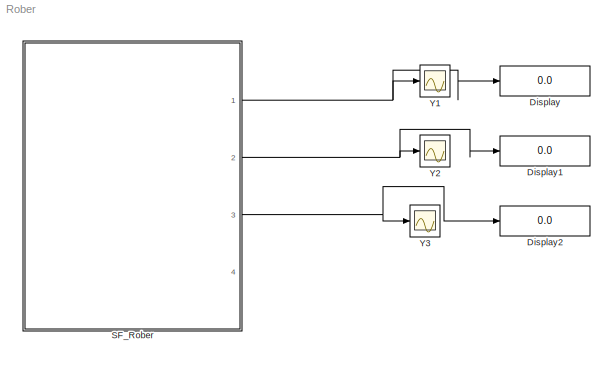
MODEL Rober
KIND model
BLOCK [Display] Display
  Decimation = 1
  Ports = [1]
  SID = 6
BLOCK [Display] Display1
  Decimation = 1
  Ports = [1]
  SID = 7
BLOCK [Display] Display2
  Decimation = 1
  Ports = [1]
  SID = 8
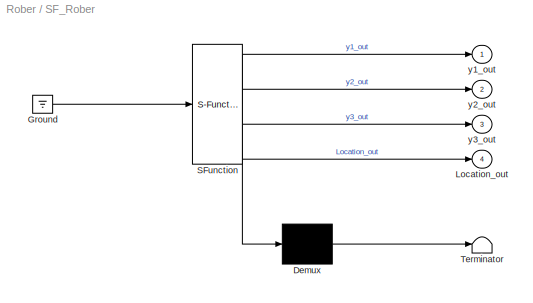
BLOCK [SubSystem] SF_Rober
  ErrorFcn = Stateflow.Translate.translate
  PermitHierarchicalResolution = ExplicitOnly
  Ports = [0, 4]
  RequestExecContextInheritance = off
  SFBlockType = Chart
  SID = 1
  TreatAsAtomicUnit = on
BLOCK [Demux] SF_Rober/ Demux 
  Outputs = 1
  Ports = [1, 1]
  SID = 1::70
BLOCK [Ground] SF_Rober/ Ground 
  SID = 1::72
BLOCK [S-Function] SF_Rober/ SFunction 
  EnableBusSupport = off
  FunctionName = sf_sfun
  PortCounts = [1 5]
  Ports = [1, 5]
  SFcnIsStateOwnerBlock = off
  SFunctionDeploymentMode = off
  SID = 1::69
  Tag = Stateflow S-Function 3
BLOCK [Terminator] SF_Rober/ Terminator 
  SID = 1::71
BLOCK [Outport] SF_Rober/Location_out
  IconDisplay = Port number
  Port = 4
  SID = 1::68
BLOCK [Outport] SF_Rober/y1_out
  IconDisplay = Port number
  SID = 1::65
BLOCK [Outport] SF_Rober/y2_out
  IconDisplay = Port number
  Port = 2
  SID = 1::66
BLOCK [Outport] SF_Rober/y3_out
  IconDisplay = Port number
  Port = 3
  SID = 1::67
BLOCK [Scope] Y1
  Floating = off
  NumInputPorts = 1
  Ports = [1]
  SID = 3
  ScopeSpecificationString = C++SS(StrPVP('Location','[587, 131, 911, 370]'),StrPVP('Open','off'),MxPVP('AxesTitles',54,'struct(''axes1'',''%<SignalLabel>'')'),MxPVP('ScopeGraphics',57,'struct(''FigureColor'',''[0.5 0.5 0.5]'',''AxesColor'',''[0 0 0]'',''AxesTickColor'',''[1 1 1]'',''LineColors'',''[1 1 0;1 0 1;0 1 1;1 0 0;0 1 0;0 0 1]'',''LineStyles'',''-|-|-|-|-|-'',''LineWidths'',''[0.5 0.5 0.5 0.5 0.5 0.5]'',''MarkerStyle...<+291ch>
BLOCK [Scope] Y2
  Floating = off
  NumInputPorts = 1
  Ports = [1]
  SID = 4
  ScopeSpecificationString = C++SS(StrPVP('Location','[188, 390, 512, 629]'),StrPVP('Open','off'),MxPVP('AxesTitles',54,'struct(''axes1'',''%<SignalLabel>'')'),MxPVP('ScopeGraphics',57,'struct(''FigureColor'',''[0.5 0.5 0.5]'',''AxesColor'',''[0 0 0]'',''AxesTickColor'',''[1 1 1]'',''LineColors'',''[1 1 0;1 0 1;0 1 1;1 0 0;0 1 0;0 0 1]'',''LineStyles'',''-|-|-|-|-|-'',''LineWidths'',''[0.5 0.5 0.5 0.5 0.5 0.5]'',''MarkerStyle...<+291ch>
BLOCK [Scope] Y3
  Floating = off
  NumInputPorts = 1
  Ports = [1]
  SID = 5
  ScopeSpecificationString = C++SS(StrPVP('Location','[188, 390, 512, 629]'),StrPVP('Open','off'),MxPVP('AxesTitles',54,'struct(''axes1'',''%<SignalLabel>'')'),MxPVP('ScopeGraphics',57,'struct(''FigureColor'',''[0.5 0.5 0.5]'',''AxesColor'',''[0 0 0]'',''AxesTickColor'',''[1 1 1]'',''LineColors'',''[1 1 0;1 0 1;0 1 1;1 0 0;0 1 0;0 0 1]'',''LineStyles'',''-|-|-|-|-|-'',''LineWidths'',''[0.5 0.5 0.5 0.5 0.5 0.5]'',''MarkerStyle...<+291ch>
LINE SF_Rober/ Demux :1 -> SF_Rober/ Terminator :1
LINE SF_Rober/ Ground :1 -> SF_Rober/ SFunction :1
LINE SF_Rober/ SFunction :1 -> SF_Rober/ Demux :1
LINE SF_Rober/ SFunction :2 -> SF_Rober/y1_out:1
LINE SF_Rober/ SFunction :3 -> SF_Rober/y2_out:1
LINE SF_Rober/ SFunction :4 -> SF_Rober/y3_out:1
LINE SF_Rober/ SFunction :5 -> SF_Rober/Location_out:1
NET SF_Rober:1 -> Display:1, Y1:1
NET SF_Rober:2 -> Display1:1, Y2:1
NET SF_Rober:3 -> Display2:1, Y3:1
note: NET lines group one-source signal fan-out (src -> all destinations, sorted); 1:1 wires keep LINE
CHART SF_Rober states=1 transitions=1
  STATE_LABEL 'Rober\\ndu:\\ny1_dot=(0-k1)*y1+k3*y2*y3;\\ny2_dot=k1*y1-k2*y2*y2-k3*y2*y3;\\ny3_dot=k2*y2^2;\\ny1_out=y1;\\ny2_out=y2;\\ny3_out=y3;\\nLocation_out =1;'
